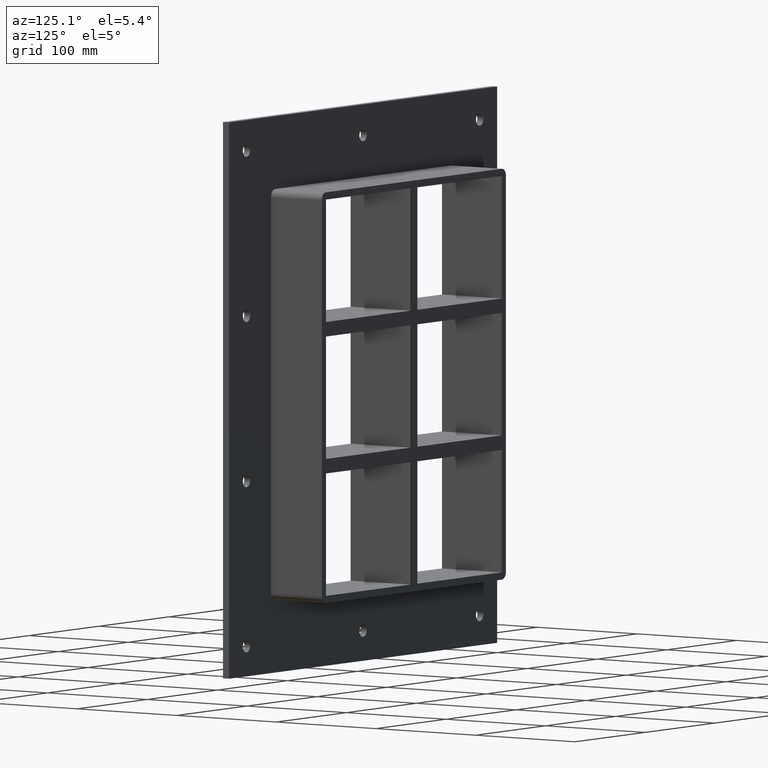
[diagram: clean part render]
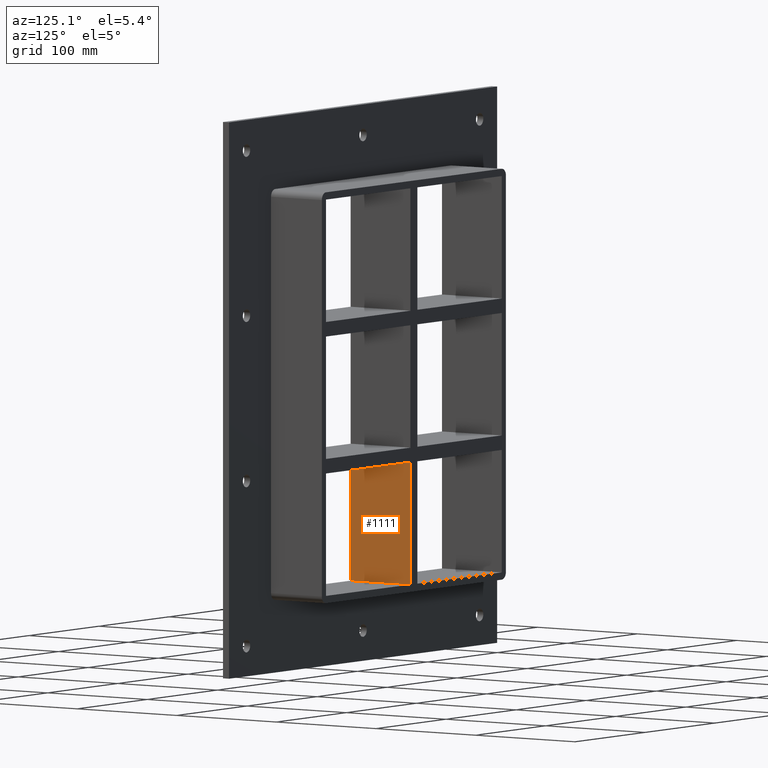
[diagram: same view with one face highlighted and labeled with its STEP entity id]
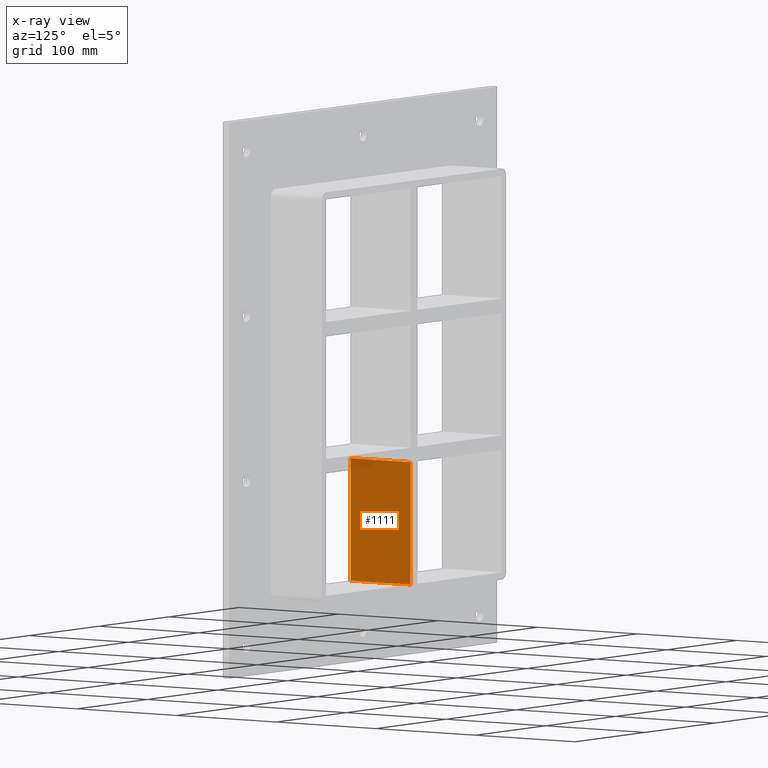
[diagram: x-ray of the same camera — body ghosted, the highlighted face saturated]
A machine part, auxiliary view. The second image highlights one B-rep face of the part: STEP entity #1111.
The next image is the same camera in x-ray: the body ghosted, the highlighted face saturated — about 3% of this face is hidden behind the body in this view.
In plain terms, the highlighted planar face has unit normal (1, 0, 0).
Its self-contained STEP definition (entity closure, byte-faithful):
#699=CARTESIAN_POINT('',(5.0,57.0,-62.500000000010203));
#700=VERTEX_POINT('',#699);
#701=CARTESIAN_POINT('',(5.0,-3.0,-62.500000000010203));
#702=VERTEX_POINT('',#701);
#703=CARTESIAN_POINT('',(5.0,57.0,-62.500000000010196));
#704=DIRECTION('',(0.0,-1.0,0.0));
#705=VECTOR('',#704,60.0);
#706=LINE('',#703,#705);
#707=EDGE_CURVE('',#700,#702,#706,.T.);
#1029=CARTESIAN_POINT('',(5.0,57.0,-163.49999999998653));
#1030=VERTEX_POINT('',#1029);
#1031=CARTESIAN_POINT('',(5.0,57.0,-62.500000000010203));
#1032=DIRECTION('',(0.0,0.0,-1.0));
#1033=VECTOR('',#1032,100.99999999997632);
#1034=LINE('',#1031,#1033);
#1035=EDGE_CURVE('',#700,#1030,#1034,.T.);
#1088=CARTESIAN_POINT('',(5.0,-3.0,163.5));
#1089=DIRECTION('',(1.0,0.0,0.0));
#1090=DIRECTION('',(0.0,0.0,-1.0));
#1091=AXIS2_PLACEMENT_3D('',#1088,#1089,#1090);
#1092=PLANE('',#1091);
#1093=ORIENTED_EDGE('',*,*,#707,.T.);
#1094=CARTESIAN_POINT('',(5.0,-3.0,-163.49999999998647));
#1095=VERTEX_POINT('',#1094);
#1096=CARTESIAN_POINT('',(5.0,-3.0,-62.500000000010203));
#1097=DIRECTION('',(0.0,0.0,-1.0));
#1098=VECTOR('',#1097,100.99999999997632);
#1099=LINE('',#1096,#1098);
#1100=EDGE_CURVE('',#702,#1095,#1099,.T.);
#1101=ORIENTED_EDGE('',*,*,#1100,.T.);
#1102=CARTESIAN_POINT('',(5.0,57.000000000000007,-163.5));
#1103=DIRECTION('',(0.0,-1.0,0.0));
#1104=VECTOR('',#1103,60.000000000000007);
#1105=LINE('',#1102,#1104);
#1106=EDGE_CURVE('',#1030,#1095,#1105,.T.);
#1107=ORIENTED_EDGE('',*,*,#1106,.F.);
#1108=ORIENTED_EDGE('',*,*,#1035,.F.);
#1109=EDGE_LOOP('',(#1093,#1101,#1107,#1108));
#1110=FACE_OUTER_BOUND('',#1109,.T.);
#1111=ADVANCED_FACE('',(#1110),#1092,.T.);